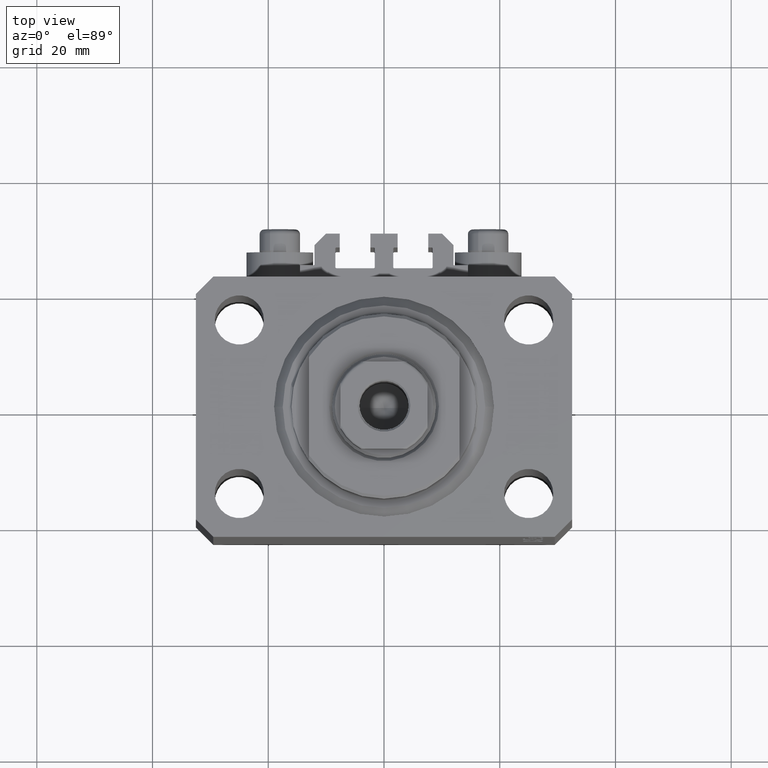
[diagram: clean part render]
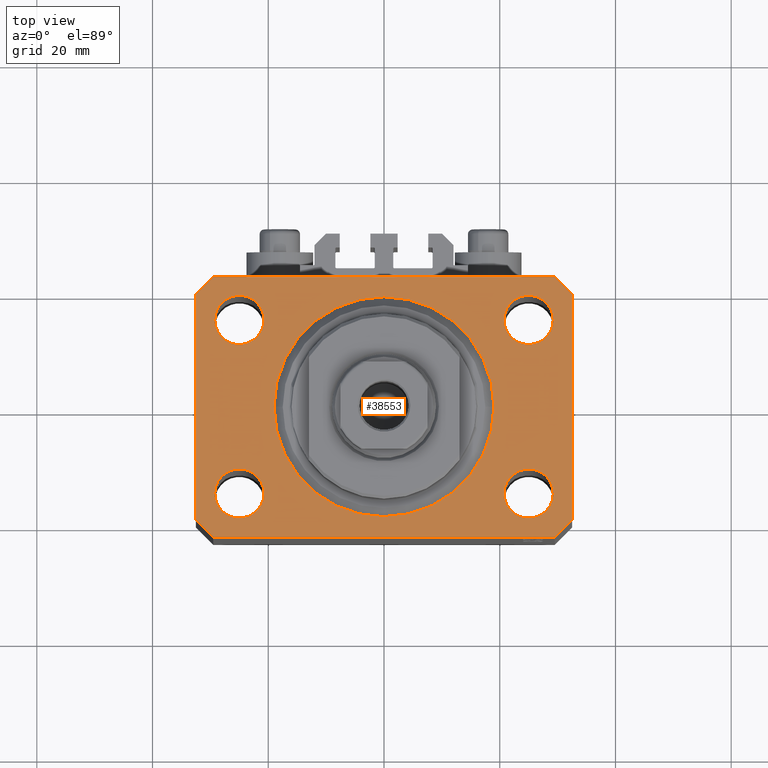
[diagram: same view with one face highlighted and labeled with its STEP entity id]
A machine part, top view. The second image highlights one B-rep face of the part: STEP entity #38553.
In plain terms, the highlighted planar face has unit normal (0, 0, 1).
Its self-contained STEP definition (entity closure, byte-faithful):
#318 = CARTESIAN_POINT ( 'NONE',  ( 25.00000000000000000, 14.99999999999999289, 0.000000000000000000 ) ) ;
#381 = VECTOR ( 'NONE', #15916, 1000.000000000000000 ) ;
#713 = VERTEX_POINT ( 'NONE', #40597 ) ;
#856 = LINE ( 'NONE', #11888, #34937 ) ;
#1380 = CARTESIAN_POINT ( 'NONE',  ( -29.25000000002137668, 14.99999999999999645, 0.000000000000000000 ) ) ;
#1701 = CIRCLE ( 'NONE', #28557, 19.00000000000000000 ) ;
#1923 = CARTESIAN_POINT ( 'NONE',  ( -29.49999999999650413, 22.49999999999949907, 0.000000000000000000 ) ) ;
#2701 = CARTESIAN_POINT ( 'NONE',  ( 0.000000000000000000, 0.000000000000000000, 0.000000000000000000 ) ) ;
#2945 = FACE_BOUND ( 'NONE', #16726, .T. ) ;
#3010 = VECTOR ( 'NONE', #4374, 1000.000000000000000 ) ;
#3355 = ORIENTED_EDGE ( 'NONE', *, *, #35971, .T. ) ;
#3393 = DIRECTION ( 'NONE',  ( 1.000000000000000000, 0.000000000000000000, 0.000000000000000000 ) ) ;
#3764 = ORIENTED_EDGE ( 'NONE', *, *, #17232, .T. ) ;
#3982 = DIRECTION ( 'NONE',  ( 0.000000000000000000, 0.000000000000000000, 1.000000000000000000 ) ) ;
#4222 = CIRCLE ( 'NONE', #10356, 4.250000000021375790 ) ;
#4374 = DIRECTION ( 'NONE',  ( 1.000000000000000000, 1.176083712526788232E-16, 0.000000000000000000 ) ) ;
#4681 = DIRECTION ( 'NONE',  ( 0.000000000000000000, -1.000000000000000000, 0.000000000000000000 ) ) ;
#4694 = DIRECTION ( 'NONE',  ( 1.000000000000000000, 0.000000000000000000, 0.000000000000000000 ) ) ;
#5088 = LINE ( 'NONE', #8231, #381 ) ;
#5285 = VERTEX_POINT ( 'NONE', #20385 ) ;
#5478 = ORIENTED_EDGE ( 'NONE', *, *, #17566, .T. ) ;
#5829 = CIRCLE ( 'NONE', #23454, 4.250000000040370374 ) ;
#5929 = EDGE_CURVE ( 'NONE', #7504, #20020, #18891, .T. ) ;
#5954 = VECTOR ( 'NONE', #29319, 1000.000000000000000 ) ;
#6439 = VERTEX_POINT ( 'NONE', #43883 ) ;
#6707 = EDGE_CURVE ( 'NONE', #5285, #15887, #28031, .T. ) ;
#6889 = EDGE_CURVE ( 'NONE', #23208, #24091, #31172, .T. ) ;
#7368 = VERTEX_POINT ( 'NONE', #12212 ) ;
#7504 = VERTEX_POINT ( 'NONE', #34758 ) ;
#7649 = LINE ( 'NONE', #18696, #23558 ) ;
#7838 = EDGE_CURVE ( 'NONE', #20020, #7504, #15106, .T. ) ;
#7982 = ORIENTED_EDGE ( 'NONE', *, *, #10373, .F. ) ;
#8141 = CIRCLE ( 'NONE', #34972, 4.249999999976314058 ) ;
#8231 = CARTESIAN_POINT ( 'NONE',  ( 29.49999999999650413, -22.49999999999949196, 0.000000000000000000 ) ) ;
#8335 = LINE ( 'NONE', #37386, #42134 ) ;
#8847 = VECTOR ( 'NONE', #42345, 1000.000000000000114 ) ;
#8876 = DIRECTION ( 'NONE',  ( 1.000000000000000000, 0.000000000000000000, 0.000000000000000000 ) ) ;
#9564 = EDGE_CURVE ( 'NONE', #15887, #45411, #47071, .T. ) ;
#9917 = FACE_OUTER_BOUND ( 'NONE', #42611, .T. ) ;
#10147 = FACE_BOUND ( 'NONE', #41452, .T. ) ;
#10356 = AXIS2_PLACEMENT_3D ( 'NONE', #15613, #18996, #30727 ) ;
#10373 = EDGE_CURVE ( 'NONE', #7368, #6439, #8141, .T. ) ;
#10463 = ORIENTED_EDGE ( 'NONE', *, *, #6889, .F. ) ;
#10490 = CARTESIAN_POINT ( 'NONE',  ( 29.49999999999650413, -22.49999999999949196, 0.000000000000000000 ) ) ;
#10896 = DIRECTION ( 'NONE',  ( 1.000000000000000000, 0.000000000000000000, 0.000000000000000000 ) ) ;
#11888 = CARTESIAN_POINT ( 'NONE',  ( -32.49999999999650413, 19.49999999999949907, 0.000000000000000000 ) ) ;
#12212 = CARTESIAN_POINT ( 'NONE',  ( 29.24999999997631051, -15.00000000000000355, 0.000000000000000000 ) ) ;
#12331 = ORIENTED_EDGE ( 'NONE', *, *, #39623, .T. ) ;
#12816 = AXIS2_PLACEMENT_3D ( 'NONE', #44554, #22972, #22732 ) ;
#13766 = DIRECTION ( 'NONE',  ( 0.000000000000000000, 0.000000000000000000, 1.000000000000000000 ) ) ;
#14729 = ORIENTED_EDGE ( 'NONE', *, *, #5929, .F. ) ;
#15054 = ORIENTED_EDGE ( 'NONE', *, *, #34046, .T. ) ;
#15106 = CIRCLE ( 'NONE', #12816, 4.249999999957291053 ) ;
#15195 = ORIENTED_EDGE ( 'NONE', *, *, #34379, .F. ) ;
#15208 = CARTESIAN_POINT ( 'NONE',  ( -24.99999999999999289, -15.00000000000000355, 0.000000000000000000 ) ) ;
#15613 = CARTESIAN_POINT ( 'NONE',  ( -25.00000000000000000, 14.99999999999999645, 0.000000000000000000 ) ) ;
#15887 = VERTEX_POINT ( 'NONE', #33851 ) ;
#15916 = DIRECTION ( 'NONE',  ( 0.7071067811865483499, 0.7071067811865466846, 0.000000000000000000 ) ) ;
#16684 = CARTESIAN_POINT ( 'NONE',  ( -32.49999999999650413, -19.49999999999949907, 0.000000000000000000 ) ) ;
#16726 = EDGE_LOOP ( 'NONE', ( #30639, #31633 ) ) ;
#16835 = ORIENTED_EDGE ( 'NONE', *, *, #9564, .T. ) ;
#17232 = EDGE_CURVE ( 'NONE', #41323, #35309, #26233, .T. ) ;
#17364 = CARTESIAN_POINT ( 'NONE',  ( -19.00000000000000000, 2.326828918379970970E-15, 0.000000000000000000 ) ) ;
#17566 = EDGE_CURVE ( 'NONE', #45411, #46469, #8335, .T. ) ;
#17573 = ORIENTED_EDGE ( 'NONE', *, *, #7838, .F. ) ;
#17724 = CIRCLE ( 'NONE', #29965, 4.250000000021375790 ) ;
#18041 = VERTEX_POINT ( 'NONE', #29832 ) ;
#18648 = DIRECTION ( 'NONE',  ( 1.000000000000000000, 0.000000000000000000, 0.000000000000000000 ) ) ;
#18696 = CARTESIAN_POINT ( 'NONE',  ( 32.49999999999651124, -19.49999999999949196, 0.000000000000000000 ) ) ;
#18891 = CIRCLE ( 'NONE', #28105, 4.249999999957291053 ) ;
#18996 = DIRECTION ( 'NONE',  ( 0.000000000000000000, 0.000000000000000000, 1.000000000000000000 ) ) ;
#20020 = VERTEX_POINT ( 'NONE', #38685 ) ;
#20336 = CARTESIAN_POINT ( 'NONE',  ( 32.49999999999651124, -19.49999999999949196, 0.000000000000000000 ) ) ;
#20385 = CARTESIAN_POINT ( 'NONE',  ( 32.49999999999702993, 19.49999999999945999, 0.000000000000000000 ) ) ;
#21001 = LINE ( 'NONE', #16684, #8847 ) ;
#21455 = CARTESIAN_POINT ( 'NONE',  ( 19.00000000000000000, 0.000000000000000000, 0.000000000000000000 ) ) ;
#21587 = EDGE_CURVE ( 'NONE', #46950, #34386, #17724, .T. ) ;
#21819 = EDGE_CURVE ( 'NONE', #30985, #18041, #24718, .T. ) ;
#22407 = EDGE_CURVE ( 'NONE', #24091, #23208, #1701, .T. ) ;
#22595 = DIRECTION ( 'NONE',  ( 1.000000000000000000, 0.000000000000000000, 0.000000000000000000 ) ) ;
#22633 = AXIS2_PLACEMENT_3D ( 'NONE', #44635, #33620, #8876 ) ;
#22721 = VECTOR ( 'NONE', #43134, 1000.000000000000000 ) ;
#22732 = DIRECTION ( 'NONE',  ( 1.000000000000000000, 0.000000000000000000, 0.000000000000000000 ) ) ;
#22972 = DIRECTION ( 'NONE',  ( 0.000000000000000000, 0.000000000000000000, 1.000000000000000000 ) ) ;
#23208 = VERTEX_POINT ( 'NONE', #17364 ) ;
#23424 = DIRECTION ( 'NONE',  ( 0.000000000000000000, 0.000000000000000000, 1.000000000000000000 ) ) ;
#23454 = AXIS2_PLACEMENT_3D ( 'NONE', #15208, #26722, #29847 ) ;
#23558 = VECTOR ( 'NONE', #33320, 1000.000000000000000 ) ;
#23797 = ORIENTED_EDGE ( 'NONE', *, *, #21587, .F. ) ;
#24091 = VERTEX_POINT ( 'NONE', #21455 ) ;
#24581 = EDGE_LOOP ( 'NONE', ( #27086, #23797 ) ) ;
#24718 = CIRCLE ( 'NONE', #41601, 4.250000000040370374 ) ;
#25038 = FACE_BOUND ( 'NONE', #39619, .T. ) ;
#25783 = CARTESIAN_POINT ( 'NONE',  ( -24.99999999999999289, -15.00000000000000355, 0.000000000000000000 ) ) ;
#26049 = EDGE_CURVE ( 'NONE', #46469, #713, #856, .T. ) ;
#26184 = CARTESIAN_POINT ( 'NONE',  ( -32.49999999999650413, 19.49999999999949907, 0.000000000000000000 ) ) ;
#26233 = LINE ( 'NONE', #37265, #3010 ) ;
#26722 = DIRECTION ( 'NONE',  ( 0.000000000000000000, 0.000000000000000000, 1.000000000000000000 ) ) ;
#27086 = ORIENTED_EDGE ( 'NONE', *, *, #34376, .F. ) ;
#28031 = LINE ( 'NONE', #39074, #22721 ) ;
#28105 = AXIS2_PLACEMENT_3D ( 'NONE', #318, #34154, #29609 ) ;
#28557 = AXIS2_PLACEMENT_3D ( 'NONE', #33157, #29553, #22595 ) ;
#28632 = CARTESIAN_POINT ( 'NONE',  ( 24.99999999999999289, -15.00000000000000355, 0.000000000000000000 ) ) ;
#29319 = DIRECTION ( 'NONE',  ( -1.000000000000000000, -3.528251137580330676E-16, 0.000000000000000000 ) ) ;
#29553 = DIRECTION ( 'NONE',  ( 0.000000000000000000, 0.000000000000000000, 1.000000000000000000 ) ) ;
#29609 = DIRECTION ( 'NONE',  ( 1.000000000000000000, 0.000000000000000000, 0.000000000000000000 ) ) ;
#29706 = DIRECTION ( 'NONE',  ( -0.7071067811865474617, -0.7071067811865474617, 0.000000000000000000 ) ) ;
#29832 = CARTESIAN_POINT ( 'NONE',  ( -29.25000000004036593, -15.00000000000000355, 0.000000000000000000 ) ) ;
#29847 = DIRECTION ( 'NONE',  ( 1.000000000000000000, 0.000000000000000000, 0.000000000000000000 ) ) ;
#29965 = AXIS2_PLACEMENT_3D ( 'NONE', #36879, #3982, #18648 ) ;
#30325 = DIRECTION ( 'NONE',  ( 0.000000000000000000, 0.000000000000000000, 1.000000000000000000 ) ) ;
#30628 = CARTESIAN_POINT ( 'NONE',  ( 0.000000000000000000, 0.000000000000000000, 0.000000000000000000 ) ) ;
#30639 = ORIENTED_EDGE ( 'NONE', *, *, #21819, .F. ) ;
#30727 = DIRECTION ( 'NONE',  ( 1.000000000000000000, 0.000000000000000000, 0.000000000000000000 ) ) ;
#30985 = VERTEX_POINT ( 'NONE', #36824 ) ;
#31172 = CIRCLE ( 'NONE', #45717, 19.00000000000000000 ) ;
#31451 = ORIENTED_EDGE ( 'NONE', *, *, #22407, .F. ) ;
#31633 = ORIENTED_EDGE ( 'NONE', *, *, #36202, .F. ) ;
#32466 = PLANE ( 'NONE',  #35793 ) ;
#32645 = ORIENTED_EDGE ( 'NONE', *, *, #26049, .T. ) ;
#33157 = CARTESIAN_POINT ( 'NONE',  ( 0.000000000000000000, 0.000000000000000000, 0.000000000000000000 ) ) ;
#33320 = DIRECTION ( 'NONE',  ( 1.334402673828349134E-14, 1.000000000000000000, 0.000000000000000000 ) ) ;
#33620 = DIRECTION ( 'NONE',  ( 0.000000000000000000, 0.000000000000000000, 1.000000000000000000 ) ) ;
#33851 = CARTESIAN_POINT ( 'NONE',  ( 29.49999999999707967, 22.49999999999952038, 0.000000000000000000 ) ) ;
#34046 = EDGE_CURVE ( 'NONE', #35309, #38855, #5088, .T. ) ;
#34099 = CIRCLE ( 'NONE', #22633, 4.249999999976314058 ) ;
#34154 = DIRECTION ( 'NONE',  ( 0.000000000000000000, 0.000000000000000000, 1.000000000000000000 ) ) ;
#34376 = EDGE_CURVE ( 'NONE', #34386, #46950, #4222, .T. ) ;
#34379 = EDGE_CURVE ( 'NONE', #6439, #7368, #34099, .T. ) ;
#34386 = VERTEX_POINT ( 'NONE', #45345 ) ;
#34758 = CARTESIAN_POINT ( 'NONE',  ( 29.24999999995729283, 14.99999999999999289, 0.000000000000000000 ) ) ;
#34937 = VECTOR ( 'NONE', #4681, 1000.000000000000000 ) ;
#34972 = AXIS2_PLACEMENT_3D ( 'NONE', #28632, #43492, #3393 ) ;
#35309 = VERTEX_POINT ( 'NONE', #10490 ) ;
#35549 = ORIENTED_EDGE ( 'NONE', *, *, #6707, .T. ) ;
#35793 = AXIS2_PLACEMENT_3D ( 'NONE', #2701, #13766, #39210 ) ;
#35971 = EDGE_CURVE ( 'NONE', #713, #41323, #21001, .T. ) ;
#36075 = FACE_BOUND ( 'NONE', #24581, .T. ) ;
#36202 = EDGE_CURVE ( 'NONE', #18041, #30985, #5829, .T. ) ;
#36824 = CARTESIAN_POINT ( 'NONE',  ( -20.74999999995962341, -15.00000000000000355, 0.000000000000000000 ) ) ;
#36879 = CARTESIAN_POINT ( 'NONE',  ( -25.00000000000000000, 14.99999999999999645, 0.000000000000000000 ) ) ;
#37265 = CARTESIAN_POINT ( 'NONE',  ( -29.49999999999650413, -22.49999999999949907, 0.000000000000000000 ) ) ;
#37386 = CARTESIAN_POINT ( 'NONE',  ( -29.49999999999650413, 22.49999999999949907, 0.000000000000000000 ) ) ;
#38553 = ADVANCED_FACE ( 'NONE', ( #42796, #2945, #25038, #10147, #36075, #9917 ), #32466, .T. ) ;
#38685 = CARTESIAN_POINT ( 'NONE',  ( 20.75000000004271072, 14.99999999999999289, 0.000000000000000000 ) ) ;
#38855 = VERTEX_POINT ( 'NONE', #20336 ) ;
#39074 = CARTESIAN_POINT ( 'NONE',  ( 32.49999999999702993, 19.49999999999945999, 0.000000000000000000 ) ) ;
#39210 = DIRECTION ( 'NONE',  ( 1.000000000000000000, 0.000000000000000000, -0.000000000000000000 ) ) ;
#39619 = EDGE_LOOP ( 'NONE', ( #7982, #15195 ) ) ;
#39623 = EDGE_CURVE ( 'NONE', #38855, #5285, #7649, .T. ) ;
#40597 = CARTESIAN_POINT ( 'NONE',  ( -32.49999999999650413, -19.49999999999949907, 0.000000000000000000 ) ) ;
#41323 = VERTEX_POINT ( 'NONE', #41474 ) ;
#41452 = EDGE_LOOP ( 'NONE', ( #14729, #17573 ) ) ;
#41474 = CARTESIAN_POINT ( 'NONE',  ( -29.49999999999650413, -22.49999999999949907, 0.000000000000000000 ) ) ;
#41601 = AXIS2_PLACEMENT_3D ( 'NONE', #25783, #30325, #10896 ) ;
#42134 = VECTOR ( 'NONE', #29706, 1000.000000000000114 ) ;
#42345 = DIRECTION ( 'NONE',  ( 0.7071067811865474617, -0.7071067811865474617, 0.000000000000000000 ) ) ;
#42611 = EDGE_LOOP ( 'NONE', ( #16835, #5478, #32645, #3355, #3764, #15054, #12331, #35549 ) ) ;
#42796 = FACE_BOUND ( 'NONE', #46456, .T. ) ;
#43134 = DIRECTION ( 'NONE',  ( -0.7071067811865344721, 0.7071067811865606734, 0.000000000000000000 ) ) ;
#43492 = DIRECTION ( 'NONE',  ( 0.000000000000000000, 0.000000000000000000, 1.000000000000000000 ) ) ;
#43883 = CARTESIAN_POINT ( 'NONE',  ( 20.75000000002367884, -15.00000000000000355, 0.000000000000000000 ) ) ;
#44554 = CARTESIAN_POINT ( 'NONE',  ( 25.00000000000000000, 14.99999999999999289, 0.000000000000000000 ) ) ;
#44635 = CARTESIAN_POINT ( 'NONE',  ( 24.99999999999999289, -15.00000000000000355, 0.000000000000000000 ) ) ;
#45345 = CARTESIAN_POINT ( 'NONE',  ( -20.74999999997862687, 14.99999999999999645, 0.000000000000000000 ) ) ;
#45411 = VERTEX_POINT ( 'NONE', #1923 ) ;
#45717 = AXIS2_PLACEMENT_3D ( 'NONE', #30628, #23424, #4694 ) ;
#46456 = EDGE_LOOP ( 'NONE', ( #31451, #10463 ) ) ;
#46469 = VERTEX_POINT ( 'NONE', #26184 ) ;
#46612 = CARTESIAN_POINT ( 'NONE',  ( 29.49999999999707967, 22.49999999999952038, 0.000000000000000000 ) ) ;
#46950 = VERTEX_POINT ( 'NONE', #1380 ) ;
#47071 = LINE ( 'NONE', #46612, #5954 ) ;